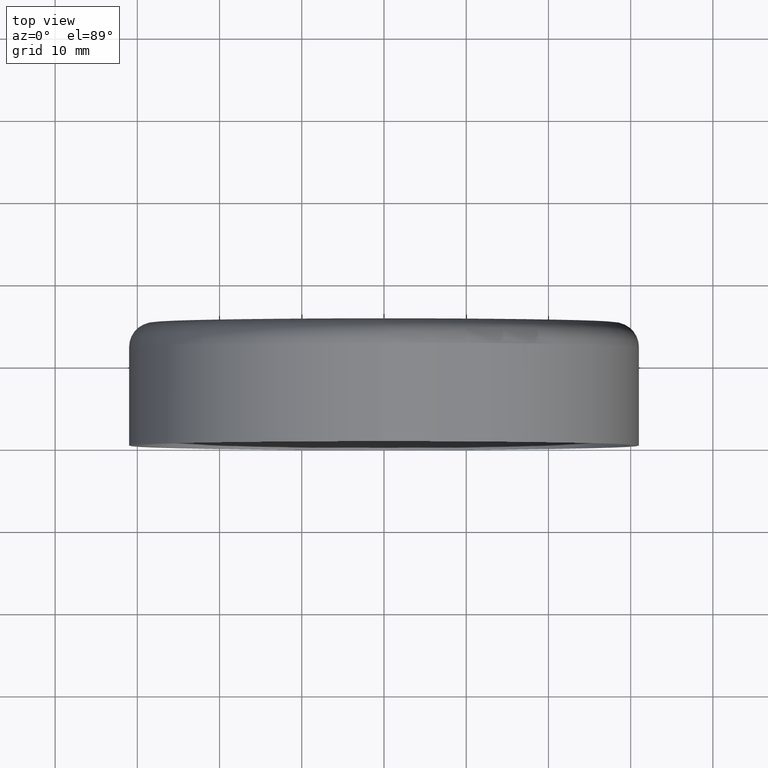
[diagram: clean part render]
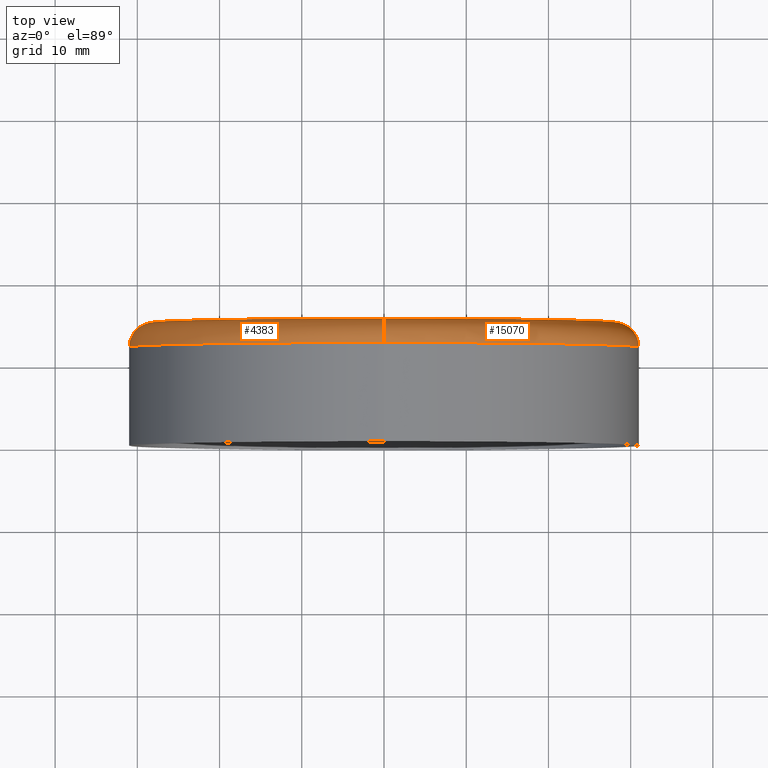
[diagram: same view with one multi-face feature highlighted, each face labeled with its STEP entity id]
A machine part, top view. The highlighted faces form ONE feature: a constant-radius fillet chain: 2 tangent blend faces with common blend radius 3 mm. The faces share edges in the B-rep.
Their STEP definitions:
[1] entity #4383 (Torus):
#144 = DIRECTION ( 'NONE',  ( 0.000000000000000000, 0.000000000000000000, -1.000000000000000000 ) ) ;
#193 = CARTESIAN_POINT ( 'NONE',  ( 0.000000000000000000, 12.00000000000000000, -31.00000000000000000 ) ) ;
#787 = CARTESIAN_POINT ( 'NONE',  ( 0.000000000000000000, 12.00000000000000000, 0.000000000000000000 ) ) ;
#825 = ORIENTED_EDGE ( 'NONE', *, *, #5357, .T. ) ;
#963 = CARTESIAN_POINT ( 'NONE',  ( 3.429011037612588881E-15, 12.00000000000000000, 27.99999999999999645 ) ) ;
#1188 = DIRECTION ( 'NONE',  ( 0.000000000000000000, 0.000000000000000000, -1.000000000000000000 ) ) ;
#1238 = ORIENTED_EDGE ( 'NONE', *, *, #13111, .F. ) ;
#1742 = ORIENTED_EDGE ( 'NONE', *, *, #8258, .T. ) ;
#2386 = DIRECTION ( 'NONE',  ( 1.000000000000000000, 0.000000000000000000, -1.224646799147353207E-16 ) ) ;
#2408 = FACE_OUTER_BOUND ( 'NONE', #12875, .T. ) ;
#2634 = AXIS2_PLACEMENT_3D ( 'NONE', #12601, #16328, #144 ) ;
#3533 = CARTESIAN_POINT ( 'NONE',  ( 0.000000000000000000, 12.00000000000000000, -27.99999999999999645 ) ) ;
#3655 = DIRECTION ( 'NONE',  ( -0.000000000000000000, -1.000000000000000000, -0.000000000000000000 ) ) ;
#4383 = ADVANCED_FACE ( 'NONE', ( #2408 ), #15423, .T. ) ;
#5357 = EDGE_CURVE ( 'NONE', #8389, #16113, #6330, .T. ) ;
#6180 = DIRECTION ( 'NONE',  ( -1.000000000000000000, 0.000000000000000000, 0.000000000000000000 ) ) ;
#6209 = CIRCLE ( 'NONE', #8083, 3.000000000000002665 ) ;
#6330 = CIRCLE ( 'NONE', #7385, 3.000000000000002665 ) ;
#7215 = AXIS2_PLACEMENT_3D ( 'NONE', #787, #9759, #11037 ) ;
#7385 = AXIS2_PLACEMENT_3D ( 'NONE', #3533, #6180, #13663 ) ;
#7620 = CARTESIAN_POINT ( 'NONE',  ( 0.000000000000000000, 15.00000000000000000, -27.99999999999999645 ) ) ;
#8083 = AXIS2_PLACEMENT_3D ( 'NONE', #963, #2386, #12195 ) ;
#8258 = EDGE_CURVE ( 'NONE', #16137, #8389, #11814, .T. ) ;
#8389 = VERTEX_POINT ( 'NONE', #7620 ) ;
#8630 = CARTESIAN_POINT ( 'NONE',  ( 0.000000000000000000, 15.00000000000000000, 0.000000000000000000 ) ) ;
#8976 = CIRCLE ( 'NONE', #7215, 31.00000000000000000 ) ;
#9759 = DIRECTION ( 'NONE',  ( -0.000000000000000000, -1.000000000000000000, -0.000000000000000000 ) ) ;
#10210 = VERTEX_POINT ( 'NONE', #12642 ) ;
#11037 = DIRECTION ( 'NONE',  ( 0.000000000000000000, 0.000000000000000000, -1.000000000000000000 ) ) ;
#11723 = ORIENTED_EDGE ( 'NONE', *, *, #14155, .F. ) ;
#11814 = CIRCLE ( 'NONE', #14799, 27.99999999999999645 ) ;
#12195 = DIRECTION ( 'NONE',  ( -1.224646799147351975E-16, 0.000000000000000000, -1.000000000000000000 ) ) ;
#12601 = CARTESIAN_POINT ( 'NONE',  ( 0.000000000000000000, 12.00000000000000000, 0.000000000000000000 ) ) ;
#12642 = CARTESIAN_POINT ( 'NONE',  ( 3.796405077356795115E-15, 12.00000000000000000, 31.00000000000000000 ) ) ;
#12875 = EDGE_LOOP ( 'NONE', ( #11723, #1742, #825, #1238 ) ) ;
#13111 = EDGE_CURVE ( 'NONE', #10210, #16113, #8976, .T. ) ;
#13663 = DIRECTION ( 'NONE',  ( 0.000000000000000000, 0.000000000000000000, 1.000000000000000000 ) ) ;
#14155 = EDGE_CURVE ( 'NONE', #16137, #10210, #6209, .T. ) ;
#14799 = AXIS2_PLACEMENT_3D ( 'NONE', #8630, #3655, #1188 ) ;
#15296 = CARTESIAN_POINT ( 'NONE',  ( 3.612708057484691604E-15, 15.00000000000000000, 27.99999999999999645 ) ) ;
#15423 = TOROIDAL_SURFACE ( 'NONE', #2634, 27.99999999999999645, 3.000000000000000888 ) ;
#16113 = VERTEX_POINT ( 'NONE', #193 ) ;
#16137 = VERTEX_POINT ( 'NONE', #15296 ) ;
#16328 = DIRECTION ( 'NONE',  ( -0.000000000000000000, -1.000000000000000000, -0.000000000000000000 ) ) ;
[2] entity #15070 (Torus):
#193 = CARTESIAN_POINT ( 'NONE',  ( 0.000000000000000000, 12.00000000000000000, -31.00000000000000000 ) ) ;
#963 = CARTESIAN_POINT ( 'NONE',  ( 3.429011037612588881E-15, 12.00000000000000000, 27.99999999999999645 ) ) ;
#1747 = EDGE_CURVE ( 'NONE', #16113, #10210, #3626, .T. ) ;
#2386 = DIRECTION ( 'NONE',  ( 1.000000000000000000, 0.000000000000000000, -1.224646799147353207E-16 ) ) ;
#3533 = CARTESIAN_POINT ( 'NONE',  ( 0.000000000000000000, 12.00000000000000000, -27.99999999999999645 ) ) ;
#3626 = CIRCLE ( 'NONE', #13484, 31.00000000000000000 ) ;
#3741 = DIRECTION ( 'NONE',  ( -0.000000000000000000, -1.000000000000000000, -0.000000000000000000 ) ) ;
#4436 = EDGE_CURVE ( 'NONE', #8389, #16137, #4596, .T. ) ;
#4452 = TOROIDAL_SURFACE ( 'NONE', #13340, 27.99999999999999645, 3.000000000000000888 ) ;
#4596 = CIRCLE ( 'NONE', #9413, 27.99999999999999645 ) ;
#5357 = EDGE_CURVE ( 'NONE', #8389, #16113, #6330, .T. ) ;
#6002 = FACE_OUTER_BOUND ( 'NONE', #12357, .T. ) ;
#6180 = DIRECTION ( 'NONE',  ( -1.000000000000000000, 0.000000000000000000, 0.000000000000000000 ) ) ;
#6209 = CIRCLE ( 'NONE', #8083, 3.000000000000002665 ) ;
#6330 = CIRCLE ( 'NONE', #7385, 3.000000000000002665 ) ;
#7385 = AXIS2_PLACEMENT_3D ( 'NONE', #3533, #6180, #13663 ) ;
#7620 = CARTESIAN_POINT ( 'NONE',  ( 0.000000000000000000, 15.00000000000000000, -27.99999999999999645 ) ) ;
#8083 = AXIS2_PLACEMENT_3D ( 'NONE', #963, #2386, #12195 ) ;
#8389 = VERTEX_POINT ( 'NONE', #7620 ) ;
#8702 = DIRECTION ( 'NONE',  ( 0.000000000000000000, 0.000000000000000000, -1.000000000000000000 ) ) ;
#9413 = AXIS2_PLACEMENT_3D ( 'NONE', #13976, #11246, #10022 ) ;
#10022 = DIRECTION ( 'NONE',  ( 0.000000000000000000, 0.000000000000000000, -1.000000000000000000 ) ) ;
#10210 = VERTEX_POINT ( 'NONE', #12642 ) ;
#11246 = DIRECTION ( 'NONE',  ( -0.000000000000000000, -1.000000000000000000, -0.000000000000000000 ) ) ;
#12195 = DIRECTION ( 'NONE',  ( -1.224646799147351975E-16, 0.000000000000000000, -1.000000000000000000 ) ) ;
#12357 = EDGE_LOOP ( 'NONE', ( #14625, #16108, #13143, #14220 ) ) ;
#12607 = CARTESIAN_POINT ( 'NONE',  ( 0.000000000000000000, 12.00000000000000000, 0.000000000000000000 ) ) ;
#12642 = CARTESIAN_POINT ( 'NONE',  ( 3.796405077356795115E-15, 12.00000000000000000, 31.00000000000000000 ) ) ;
#13143 = ORIENTED_EDGE ( 'NONE', *, *, #1747, .F. ) ;
#13340 = AXIS2_PLACEMENT_3D ( 'NONE', #13754, #16216, #8702 ) ;
#13484 = AXIS2_PLACEMENT_3D ( 'NONE', #12607, #3741, #13870 ) ;
#13663 = DIRECTION ( 'NONE',  ( 0.000000000000000000, 0.000000000000000000, 1.000000000000000000 ) ) ;
#13754 = CARTESIAN_POINT ( 'NONE',  ( 0.000000000000000000, 12.00000000000000000, 0.000000000000000000 ) ) ;
#13870 = DIRECTION ( 'NONE',  ( 0.000000000000000000, 0.000000000000000000, -1.000000000000000000 ) ) ;
#13976 = CARTESIAN_POINT ( 'NONE',  ( 0.000000000000000000, 15.00000000000000000, 0.000000000000000000 ) ) ;
#14155 = EDGE_CURVE ( 'NONE', #16137, #10210, #6209, .T. ) ;
#14220 = ORIENTED_EDGE ( 'NONE', *, *, #5357, .F. ) ;
#14625 = ORIENTED_EDGE ( 'NONE', *, *, #4436, .T. ) ;
#15070 = ADVANCED_FACE ( 'NONE', ( #6002 ), #4452, .T. ) ;
#15296 = CARTESIAN_POINT ( 'NONE',  ( 3.612708057484691604E-15, 15.00000000000000000, 27.99999999999999645 ) ) ;
#16108 = ORIENTED_EDGE ( 'NONE', *, *, #14155, .T. ) ;
#16113 = VERTEX_POINT ( 'NONE', #193 ) ;
#16137 = VERTEX_POINT ( 'NONE', #15296 ) ;
#16216 = DIRECTION ( 'NONE',  ( -0.000000000000000000, -1.000000000000000000, -0.000000000000000000 ) ) ;